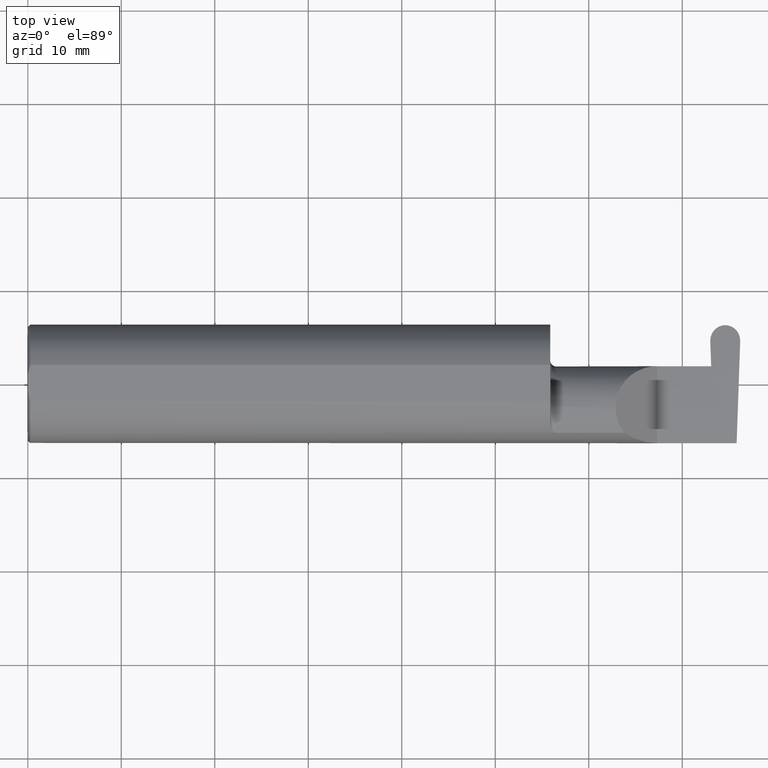
[diagram: clean part render]
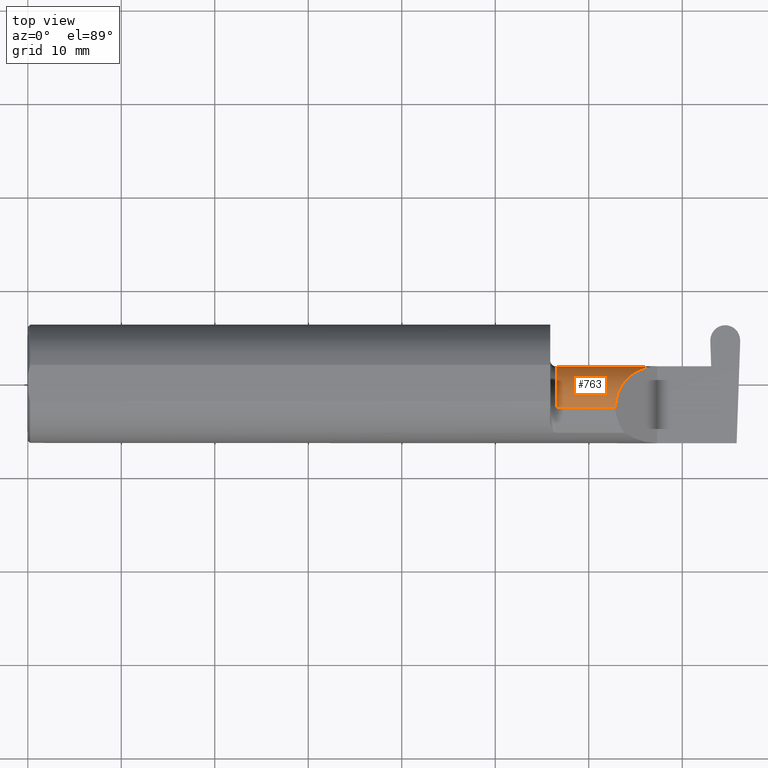
[diagram: same view with one face highlighted and labeled with its STEP entity id]
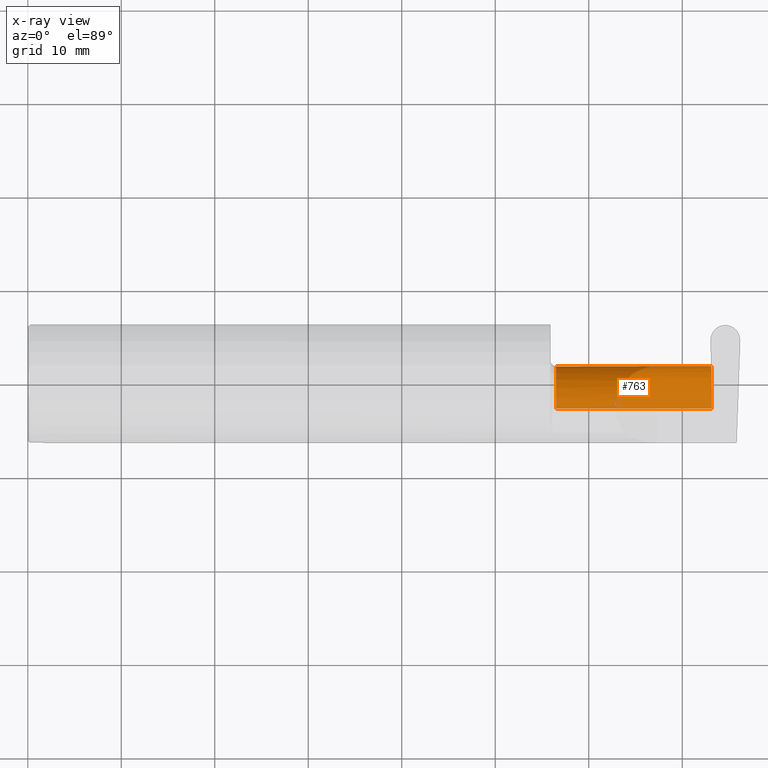
[diagram: x-ray of the same camera — body ghosted, the highlighted face saturated]
A machine part, top view. The second image highlights one B-rep face of the part: STEP entity #763.
The next image is the same camera in x-ray: the body ghosted, the highlighted face saturated — about 2% of this face is hidden behind the body in this view.
In plain terms, the highlighted cylindrical surface (partial cylindrical patch) has radius 4.445 mm, axis along (-1, -0, -0).
Its self-contained STEP definition (entity closure, byte-faithful):
#3 = VECTOR ( 'NONE', #436, 39.37007874015748143 ) ;
#4 = CARTESIAN_POINT ( 'NONE',  ( 2.200000000000000178, 0.07404339472834127467, -0.006107411922952042140 ) ) ;
#21 = CIRCLE ( 'NONE', #512, 0.1750000000000000167 ) ;
#40 = CYLINDRICAL_SURFACE ( 'NONE', #605, 0.1750000000000000444 ) ;
#41 = CARTESIAN_POINT ( 'NONE',  ( 2.225000000000000089, -0.1008500000000000091, 0.1750000000000000167 ) ) ;
#42 = ORIENTED_EDGE ( 'NONE', *, *, #195, .F. ) ;
#48 = DIRECTION ( 'NONE',  ( -1.000000000000000000, -0.000000000000000000, -0.000000000000000000 ) ) ;
#50 = ORIENTED_EDGE ( 'NONE', *, *, #227, .F. ) ;
#62 = VERTEX_POINT ( 'NONE', #505 ) ;
#64 = CARTESIAN_POINT ( 'NONE',  ( 2.877698151322465314, 0.07404339472834124691, -0.006107411922953761250 ) ) ;
#70 = EDGE_LOOP ( 'NONE', ( #50, #150, #109, #320, #515, #601, #814, #42 ) ) ;
#86 = CARTESIAN_POINT ( 'NONE',  ( 2.225000000000000089, -0.1008500000000000091, 0.000000000000000000 ) ) ;
#93 = VERTEX_POINT ( 'NONE', #684 ) ;
#95 = CARTESIAN_POINT ( 'NONE',  ( 2.225000000000000089, -0.1008499999999999952, -0.1750000000000000167 ) ) ;
#99 = CARTESIAN_POINT ( 'NONE',  ( 2.877698151322465314, 0.07404339472834124691, -0.006107411922953761250 ) ) ;
#109 = ORIENTED_EDGE ( 'NONE', *, *, #662, .F. ) ;
#131 = CARTESIAN_POINT ( 'NONE',  ( 2.200000000000000178, -0.1008499999999999952, -0.1750000000000000444 ) ) ;
#144 =( BOUNDED_CURVE ( )  B_SPLINE_CURVE ( 3, ( #619, #262, #198, #426 ),
 .UNSPECIFIED., .F., .F. ) 
 B_SPLINE_CURVE_WITH_KNOTS ( ( 4, 4 ),
 ( 0.000000000000000000, 1.570796326794896336 ),
 .UNSPECIFIED. ) 
 CURVE ( )  GEOMETRIC_REPRESENTATION_ITEM ( )  RATIONAL_B_SPLINE_CURVE ( ( 1.000000000000000000, 0.8047378541243650485, 0.8047378541243650485, 1.000000000000000000 ) ) 
 REPRESENTATION_ITEM ( '' )  );
#148 = CARTESIAN_POINT ( 'NONE',  ( 2.200000000000000178, -0.1008500000000000091, 0.1750000000000000444 ) ) ;
#150 = ORIENTED_EDGE ( 'NONE', *, *, #190, .T. ) ;
#151 = DIRECTION ( 'NONE',  ( -1.000000000000000000, -0.000000000000000000, -0.000000000000000000 ) ) ;
#158 = DIRECTION ( 'NONE',  ( 1.000000000000000000, 0.000000000000000000, 0.000000000000000000 ) ) ;
#159 = CARTESIAN_POINT ( 'NONE',  ( 2.880773714454434753, -0.001152430219572287730, -0.1750000000000000722 ) ) ;
#190 = EDGE_CURVE ( 'NONE', #62, #652, #754, .T. ) ;
#194 = VECTOR ( 'NONE', #338, 39.37007874015748143 ) ;
#195 = EDGE_CURVE ( 'NONE', #551, #264, #308, .T. ) ;
#198 = CARTESIAN_POINT ( 'NONE',  ( 2.547487373415290968, 0.07415000000000000757, 0.1025126265847084162 ) ) ;
#227 = EDGE_CURVE ( 'NONE', #62, #551, #247, .T. ) ;
#247 =( BOUNDED_CURVE ( )  B_SPLINE_CURVE ( 3, ( #651, #159, #655, #99 ),
 .UNSPECIFIED., .F., .F. ) 
 B_SPLINE_CURVE_WITH_KNOTS ( ( 4, 4 ),
 ( 3.159045946109736214, 4.694935687864654206 ),
 .UNSPECIFIED. ) 
 CURVE ( )  GEOMETRIC_REPRESENTATION_ITEM ( )  RATIONAL_B_SPLINE_CURVE ( ( 1.000000000000000000, 0.8128932002257887035, 0.8128932002257887035, 1.000000000000000000 ) ) 
 REPRESENTATION_ITEM ( '' )  );
#262 = CARTESIAN_POINT ( 'NONE',  ( 2.474999999999998757, 0.001662626584708354381, 0.1750000000000000167 ) ) ;
#264 = VERTEX_POINT ( 'NONE', #517 ) ;
#289 = VECTOR ( 'NONE', #158, 39.37007874015748143 ) ;
#308 = LINE ( 'NONE', #4, #3 ) ;
#320 = ORIENTED_EDGE ( 'NONE', *, *, #646, .F. ) ;
#338 = DIRECTION ( 'NONE',  ( -1.000000000000000000, -0.000000000000000000, -0.000000000000000000 ) ) ;
#406 = CARTESIAN_POINT ( 'NONE',  ( 2.200000000000000178, -0.1008500000000000091, 0.000000000000000000 ) ) ;
#419 = CARTESIAN_POINT ( 'NONE',  ( 2.866439859938323398, 0.07404339472834124691, -0.006107411922953615534 ) ) ;
#426 = CARTESIAN_POINT ( 'NONE',  ( 2.650000000000000355, 0.07414999999999999369, 9.797174393178813824E-17 ) ) ;
#436 = DIRECTION ( 'NONE',  ( -1.000000000000000000, -0.000000000000000000, -0.000000000000000000 ) ) ;
#453 = CARTESIAN_POINT ( 'NONE',  ( 2.474999999999998757, -0.1008500000000000091, 0.1750000000000000444 ) ) ;
#460 = B_SPLINE_CURVE_WITH_KNOTS ( 'NONE', 3,
 ( #419, #675, #536, #598 ),
 .UNSPECIFIED., .F., .F.,
 ( 4, 4 ),
 ( 0.000000000000000000, 1.000000000000000000 ),
 .UNSPECIFIED. ) ;
#473 = FACE_OUTER_BOUND ( 'NONE', #70, .T. ) ;
#486 = VECTOR ( 'NONE', #625, 39.37007874015748143 ) ;
#502 = VERTEX_POINT ( 'NONE', #41 ) ;
#505 = CARTESIAN_POINT ( 'NONE',  ( 2.880805159919762826, -0.1008500000000000368, -0.1750000000000000444 ) ) ;
#512 = AXIS2_PLACEMENT_3D ( 'NONE', #86, #151, #782 ) ;
#515 = ORIENTED_EDGE ( 'NONE', *, *, #535, .T. ) ;
#517 = CARTESIAN_POINT ( 'NONE',  ( 2.866439859938323398, 0.07404339472834124691, -0.006107411922953615534 ) ) ;
#535 = EDGE_CURVE ( 'NONE', #720, #545, #144, .T. ) ;
#536 = CARTESIAN_POINT ( 'NONE',  ( 2.866510930119428924, 0.07411446490944692544, -0.002035803974317873868 ) ) ;
#545 = VERTEX_POINT ( 'NONE', #755 ) ;
#551 = VERTEX_POINT ( 'NONE', #64 ) ;
#583 = LINE ( 'NONE', #709, #289 ) ;
#598 = CARTESIAN_POINT ( 'NONE',  ( 2.866546465209982131, 0.07414999999999977165, 0.000000000000000000 ) ) ;
#601 = ORIENTED_EDGE ( 'NONE', *, *, #721, .T. ) ;
#605 = AXIS2_PLACEMENT_3D ( 'NONE', #406, #48, #665 ) ;
#619 = CARTESIAN_POINT ( 'NONE',  ( 2.474999999999998757, -0.1008500000000000091, 0.1750000000000000444 ) ) ;
#625 = DIRECTION ( 'NONE',  ( -1.000000000000000000, -0.000000000000000000, -0.000000000000000000 ) ) ;
#646 = EDGE_CURVE ( 'NONE', #720, #502, #778, .T. ) ;
#651 = CARTESIAN_POINT ( 'NONE',  ( 2.880805159919762826, -0.1008500000000000368, -0.1750000000000000444 ) ) ;
#652 = VERTEX_POINT ( 'NONE', #95 ) ;
#655 = CARTESIAN_POINT ( 'NONE',  ( 2.879499660824579088, 0.07056399972053259417, -0.1057442486376092700 ) ) ;
#662 = EDGE_CURVE ( 'NONE', #502, #652, #21, .T. ) ;
#665 = DIRECTION ( 'NONE',  ( 0.000000000000000000, 0.000000000000000000, 1.000000000000000000 ) ) ;
#675 = CARTESIAN_POINT ( 'NONE',  ( 2.866475395028876161, 0.07407892981889409312, -0.004071607948635747737 ) ) ;
#684 = CARTESIAN_POINT ( 'NONE',  ( 2.866546465209982131, 0.07414999999999977165, 0.000000000000000000 ) ) ;
#709 = CARTESIAN_POINT ( 'NONE',  ( 2.200000000000000178, 0.07414999999999999369, 9.797174393178813824E-17 ) ) ;
#720 = VERTEX_POINT ( 'NONE', #453 ) ;
#721 = EDGE_CURVE ( 'NONE', #545, #93, #583, .T. ) ;
#754 = LINE ( 'NONE', #131, #486 ) ;
#755 = CARTESIAN_POINT ( 'NONE',  ( 2.650000000000000355, 0.07414999999999999369, 9.797174393178813824E-17 ) ) ;
#763 = ADVANCED_FACE ( 'NONE', ( #473 ), #40, .T. ) ;
#778 = LINE ( 'NONE', #148, #194 ) ;
#782 = DIRECTION ( 'NONE',  ( 0.000000000000000000, 0.000000000000000000, 1.000000000000000000 ) ) ;
#810 = EDGE_CURVE ( 'NONE', #264, #93, #460, .T. ) ;
#814 = ORIENTED_EDGE ( 'NONE', *, *, #810, .F. ) ;